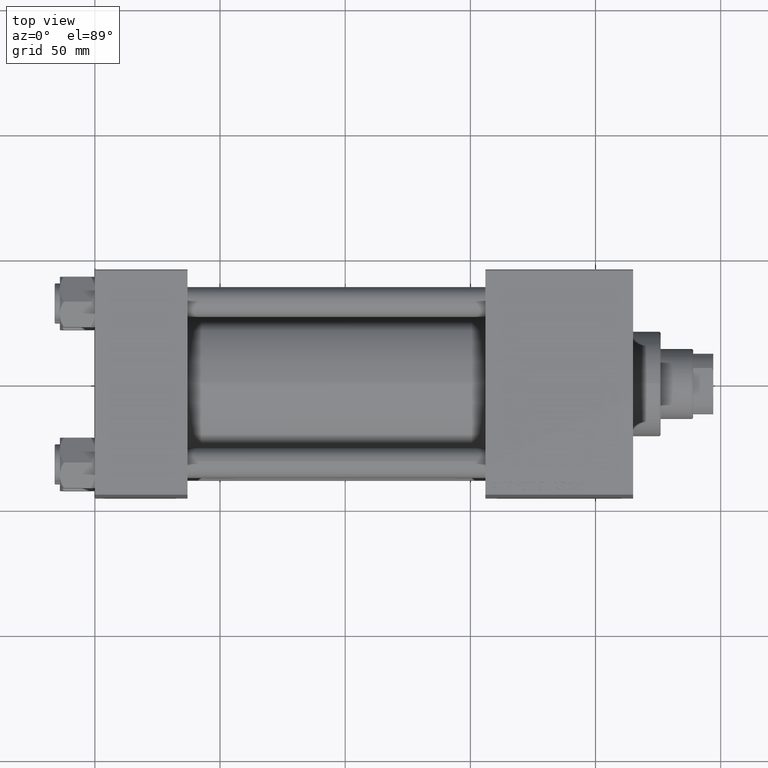
[diagram: clean part render]
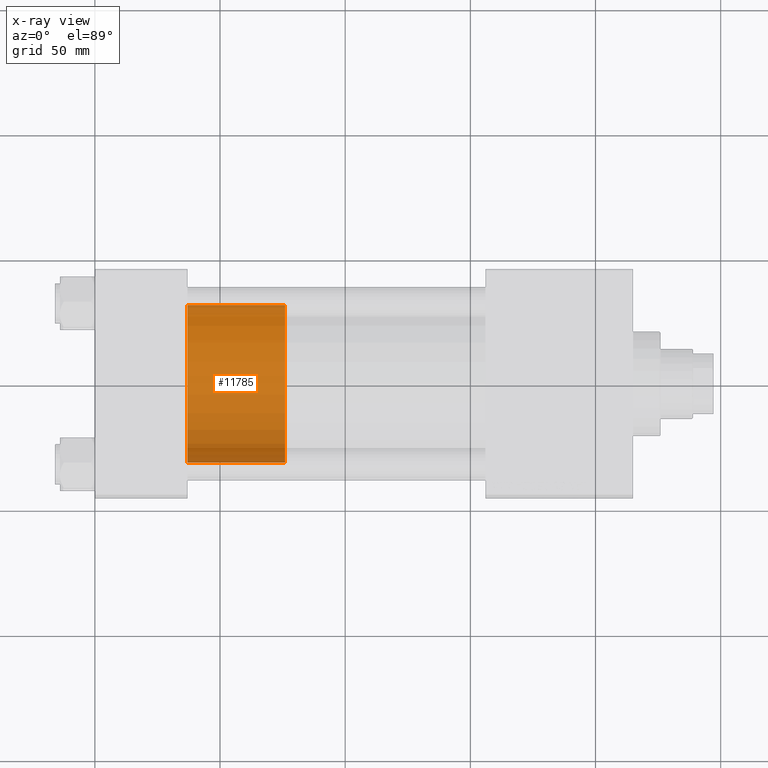
[diagram: x-ray — body ghosted, one internal face saturated and labeled with its STEP entity id]
A machine part, top view, then the same camera in x-ray: the body is ghosted and one INTERNAL B-rep face — a face not visible from any outside direction — is saturated and labeled: STEP entity #11785.
In plain terms, the highlighted cylindrical surface (partial cylindrical patch) has radius 31.5 mm, axis along (-1, 0, 0).
Its self-contained STEP definition (entity closure, byte-faithful):
#1308 = CARTESIAN_POINT ( 'NONE',  ( -31.50000000000000000, 0.000000000000000000, 0.000000000000000000 ) ) ;
#2098 = EDGE_CURVE ( 'NONE', #50180, #7929, #12036, .T. ) ;
#2600 = CARTESIAN_POINT ( 'NONE',  ( 0.000000000000000000, 0.000000000000000000, 0.000000000000000000 ) ) ;
#3577 = EDGE_CURVE ( 'NONE', #7929, #43090, #8976, .T. ) ;
#4504 = CIRCLE ( 'NONE', #32891, 31.50000000000000000 ) ;
#4646 = CARTESIAN_POINT ( 'NONE',  ( 31.50000000000000000, 3.857637417314162689E-15, 39.00000000000000000 ) ) ;
#7569 = EDGE_CURVE ( 'NONE', #47092, #43090, #21044, .T. ) ;
#7929 = VERTEX_POINT ( 'NONE', #33330 ) ;
#8976 = CIRCLE ( 'NONE', #12195, 31.50000000000000000 ) ;
#9113 = DIRECTION ( 'NONE',  ( -0.000000000000000000, -0.000000000000000000, -1.000000000000000000 ) ) ;
#10013 = AXIS2_PLACEMENT_3D ( 'NONE', #39652, #20372, #39906 ) ;
#11680 = EDGE_LOOP ( 'NONE', ( #37199, #35334, #25794, #41247 ) ) ;
#11785 = ADVANCED_FACE ( 'NONE', ( #24929 ), #27999, .T. ) ;
#12036 = LINE ( 'NONE', #20157, #47798 ) ;
#12195 = AXIS2_PLACEMENT_3D ( 'NONE', #2600, #48579, #25715 ) ;
#16102 = DIRECTION ( 'NONE',  ( -0.000000000000000000, -0.000000000000000000, -1.000000000000000000 ) ) ;
#19921 = CARTESIAN_POINT ( 'NONE',  ( -31.50000000000000000, 0.000000000000000000, 39.00000000000000000 ) ) ;
#20090 = EDGE_CURVE ( 'NONE', #50180, #47092, #4504, .T. ) ;
#20157 = CARTESIAN_POINT ( 'NONE',  ( 31.50000000000000000, 3.857637417314162689E-15, 39.00000000000000000 ) ) ;
#20372 = DIRECTION ( 'NONE',  ( -0.000000000000000000, -0.000000000000000000, -1.000000000000000000 ) ) ;
#20805 = CARTESIAN_POINT ( 'NONE',  ( -31.50000000000000000, 0.000000000000000000, 39.00000000000000000 ) ) ;
#20943 = CARTESIAN_POINT ( 'NONE',  ( 0.000000000000000000, 0.000000000000000000, 39.00000000000000000 ) ) ;
#21044 = LINE ( 'NONE', #20805, #35831 ) ;
#24929 = FACE_OUTER_BOUND ( 'NONE', #11680, .T. ) ;
#25715 = DIRECTION ( 'NONE',  ( 1.000000000000000000, 0.000000000000000000, 0.000000000000000000 ) ) ;
#25794 = ORIENTED_EDGE ( 'NONE', *, *, #3577, .T. ) ;
#27999 = CYLINDRICAL_SURFACE ( 'NONE', #10013, 31.50000000000000000 ) ;
#29067 = DIRECTION ( 'NONE',  ( 1.000000000000000000, 0.000000000000000000, 0.000000000000000000 ) ) ;
#32891 = AXIS2_PLACEMENT_3D ( 'NONE', #20943, #41207, #29067 ) ;
#33330 = CARTESIAN_POINT ( 'NONE',  ( 31.50000000000000000, 3.857637417314162689E-15, 0.000000000000000000 ) ) ;
#35334 = ORIENTED_EDGE ( 'NONE', *, *, #2098, .T. ) ;
#35831 = VECTOR ( 'NONE', #9113, 1000.000000000000000 ) ;
#37199 = ORIENTED_EDGE ( 'NONE', *, *, #20090, .F. ) ;
#39652 = CARTESIAN_POINT ( 'NONE',  ( 0.000000000000000000, 0.000000000000000000, 39.00000000000000000 ) ) ;
#39906 = DIRECTION ( 'NONE',  ( -1.000000000000000000, 0.000000000000000000, 0.000000000000000000 ) ) ;
#41207 = DIRECTION ( 'NONE',  ( 0.000000000000000000, 0.000000000000000000, 1.000000000000000000 ) ) ;
#41247 = ORIENTED_EDGE ( 'NONE', *, *, #7569, .F. ) ;
#43090 = VERTEX_POINT ( 'NONE', #1308 ) ;
#47092 = VERTEX_POINT ( 'NONE', #19921 ) ;
#47798 = VECTOR ( 'NONE', #16102, 1000.000000000000000 ) ;
#48579 = DIRECTION ( 'NONE',  ( 0.000000000000000000, 0.000000000000000000, 1.000000000000000000 ) ) ;
#50180 = VERTEX_POINT ( 'NONE', #4646 ) ;